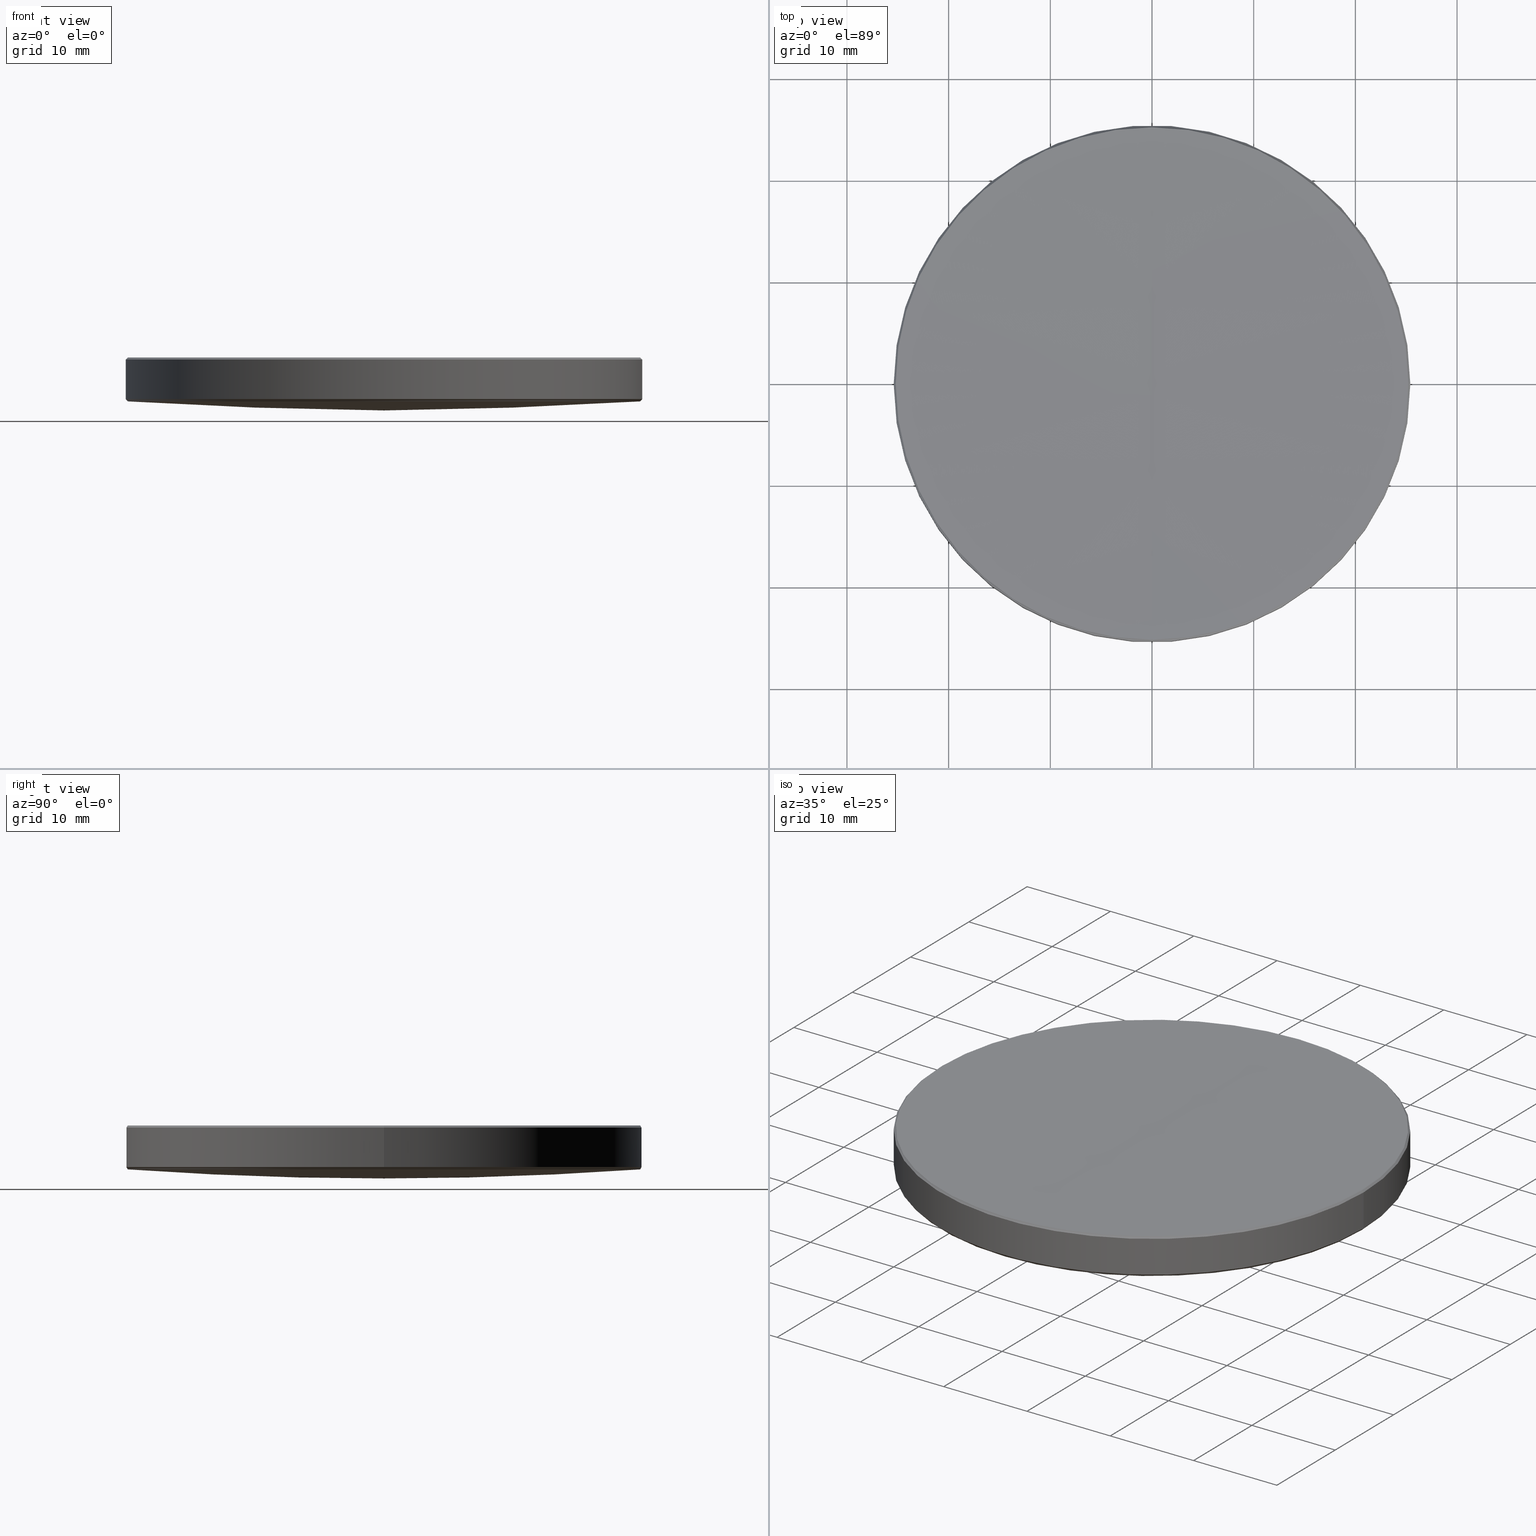
[diagram: canonical four-view strip — front | top / right | iso, engineering-drawing reading convention]
A machine part, canonical four-view strip (front | top / right | iso — engineering-drawing reading convention). The complete STEP part file that produces these views, byte-faithful:
ISO-10303-21;
HEADER;
FILE_DESCRIPTION (( 'STEP AP214' ),
    '1' );
FILE_NAME ('GLM2-050B-1000.STEP',
    '2024-08-09T03:01:46',
    ( 'Windows User' ),
    ( 'P R C' ),
    'SwSTEP 2.0',
    'SolidWorks 2022',
    '' );
FILE_SCHEMA (( 'AUTOMOTIVE_DESIGN' ));
ENDSEC;

DATA;
#1 = DIRECTION ( 'NONE',  ( -1.000000000000000000, 0.000000000000000000, 0.000000000000000000 ) ) ;
#2 = ORIENTED_EDGE ( 'NONE', *, *, #310, .T. ) ;
#3 = CARTESIAN_POINT ( 'NONE',  ( 25.20315217857431023, 3.098549417112872365E-15, 17.29684782142548727 ) ) ;
#4 = AXIS2_PLACEMENT_3D ( 'NONE', #190, #291, #84 ) ;
#5 = DIRECTION ( 'NONE',  ( 0.000000000000000000, 0.000000000000000000, 1.000000000000000000 ) ) ;
#6 = AXIS2_PLACEMENT_3D ( 'NONE', #225, #30, #304 ) ;
#7 = SURFACE_SIDE_STYLE ('',( #139 ) ) ;
#8 = VECTOR ( 'NONE', #161, 1000.000000000000000 ) ;
#9 = SURFACE_SIDE_STYLE ('',( #209 ) ) ;
#10 = ORIENTED_EDGE ( 'NONE', *, *, #301, .T. ) ;
#11 = EDGE_CURVE ( 'NONE', #104, #186, #243, .T. ) ;
#12 = EDGE_LOOP ( 'NONE', ( #96, #62, #92, #68 ) ) ;
#13 = AXIS2_PLACEMENT_3D ( 'NONE', #230, #133, #109 ) ;
#14 = ORIENTED_EDGE ( 'NONE', *, *, #48, .T. ) ;
#15 = ORIENTED_EDGE ( 'NONE', *, *, #45, .F. ) ;
#16 = AXIS2_PLACEMENT_3D ( 'NONE', #163, #5, #38 ) ;
#17 = VERTEX_POINT ( 'NONE', #137 ) ;
#18 = ADVANCED_FACE ( 'NONE', ( #179 ), #248, .T. ) ;
#19 = CIRCLE ( 'NONE', #194, 356.6899999999999977 ) ;
#20 = AXIS2_PLACEMENT_3D ( 'NONE', #208, #308, #182 ) ;
#21 = DIRECTION ( 'NONE',  ( 0.6549583843073308875, 0.000000000000000000, 0.7556649487871797133 ) ) ;
#22 = DIRECTION ( 'NONE',  ( 0.000000000000000000, 0.000000000000000000, -1.000000000000000000 ) ) ;
#23 = AXIS2_PLACEMENT_3D ( 'NONE', #257, #78, #50 ) ;
#24 = EDGE_CURVE ( 'NONE', #17, #186, #111, .T. ) ;
#25 = DIRECTION ( 'NONE',  ( 0.000000000000000000, 1.000000000000000000, 0.000000000000000000 ) ) ;
#26 = DIRECTION ( 'NONE',  ( 0.000000000000000000, 0.000000000000000000, -1.000000000000000000 ) ) ;
#27 = VECTOR ( 'NONE', #160, 1000.000000000000227 ) ;
#28 = LINE ( 'NONE', #51, #27 ) ;
#29 = VERTEX_POINT ( 'NONE', #203 ) ;
#30 = DIRECTION ( 'NONE',  ( -0.000000000000000000, -0.000000000000000000, 1.000000000000000000 ) ) ;
#31 = PRODUCT_CONTEXT ( 'NONE', #322, 'mechanical' ) ;
#32 = CARTESIAN_POINT ( 'NONE',  ( 0.000000000000000000, 0.000000000000000000, 13.21592418636929978 ) ) ;
#33 = AXIS2_PLACEMENT_3D ( 'NONE', #32, #63, #165 ) ;
#34 = FACE_OUTER_BOUND ( 'NONE', #118, .T. ) ;
#35 = ORIENTED_EDGE ( 'NONE', *, *, #234, .F. ) ;
#36 = DIRECTION ( 'NONE',  ( -0.000000000000000000, -0.000000000000000000, 1.000000000000000000 ) ) ;
#37 = CIRCLE ( 'NONE', #266, 25.39999999999999858 ) ;
#38 = DIRECTION ( 'NONE',  ( 1.000000000000000000, 0.000000000000000000, 0.000000000000000000 ) ) ;
#39 = VERTEX_POINT ( 'NONE', #227 ) ;
#40 = CARTESIAN_POINT ( 'NONE',  ( 0.000000000000000000, 2.184096333939347168E-14, 12.09447984699951739 ) ) ;
#41 = ORIENTED_EDGE ( 'NONE', *, *, #320, .T. ) ;
#42 =( NAMED_UNIT ( * ) PLANE_ANGLE_UNIT ( ) SI_UNIT ( $, .RADIAN. ) );
#43 = ORIENTED_EDGE ( 'NONE', *, *, #259, .T. ) ;
#44 = DIRECTION ( 'NONE',  ( -1.000000000000000000, 0.000000000000000000, 0.000000000000000000 ) ) ;
#45 = EDGE_CURVE ( 'NONE', #67, #218, #28, .T. ) ;
#46 = AXIS2_PLACEMENT_3D ( 'NONE', #57, #158, #153 ) ;
#47 = PRESENTATION_LAYER_ASSIGNMENT (  '', '', ( #178 ) ) ;
#48 = EDGE_CURVE ( 'NONE', #281, #39, #250, .T. ) ;
#49 = CARTESIAN_POINT ( 'NONE',  ( -25.39999999999999858, 3.110602869834276865E-15, 13.21592418636929978 ) ) ;
#50 = DIRECTION ( 'NONE',  ( 1.000000000000000000, 0.000000000000000000, 0.000000000000000000 ) ) ;
#51 = CARTESIAN_POINT ( 'NONE',  ( 25.20315217857427470, 3.086495964391462737E-15, 17.29684782142548727 ) ) ;
#52 = SPHERICAL_SURFACE ( 'NONE', #207, 356.6899999999999977 ) ;
#53 = CARTESIAN_POINT ( 'NONE',  ( -25.39999999999999858, 0.000000000000000000, 20.00000000000000000 ) ) ;
#54 = EDGE_LOOP ( 'NONE', ( #120, #41, #206, #136 ) ) ;
#55 = PRESENTATION_LAYER_ASSIGNMENT (  '', '', ( #110 ) ) ;
#56 = SPHERICAL_SURFACE ( 'NONE', #91, 1580.240000000000236 ) ;
#57 = CARTESIAN_POINT ( 'NONE',  ( 0.000000000000000000, 0.000000000000000000, 17.29684782142548727 ) ) ;
#58 = EDGE_LOOP ( 'NONE', ( #289, #254, #171, #164, #102 ) ) ;
#59 = CARTESIAN_POINT ( 'NONE',  ( 25.39999999999999858, 3.110602869834276865E-15, 13.21592418636929978 ) ) ;
#60 = DIRECTION ( 'NONE',  ( 1.000000000000000000, 0.000000000000000000, 0.000000000000000000 ) ) ;
#61 = DIRECTION ( 'NONE',  ( -0.000000000000000000, -0.000000000000000000, 1.000000000000000000 ) ) ;
#62 = ORIENTED_EDGE ( 'NONE', *, *, #24, .T. ) ;
#63 = DIRECTION ( 'NONE',  ( -0.000000000000000000, -0.000000000000000000, 1.000000000000000000 ) ) ;
#64 = VERTEX_POINT ( 'NONE', #274 ) ;
#65 = DIRECTION ( 'NONE',  ( -1.000000000000000000, 0.000000000000000000, 0.000000000000000000 ) ) ;
#66 = CONICAL_SURFACE ( 'NONE', #33, 25.39999999999999858, 0.7141275475421955399 ) ;
#67 = VERTEX_POINT ( 'NONE', #3 ) ;
#68 = ORIENTED_EDGE ( 'NONE', *, *, #252, .T. ) ;
#69 = PRODUCT_DEFINITION_CONTEXT ( 'detailed design', #156, 'design' ) ;
#70 = ORIENTED_EDGE ( 'NONE', *, *, #125, .F. ) ;
#71 = LINE ( 'NONE', #228, #284 ) ;
#72 = CARTESIAN_POINT ( 'NONE',  ( 0.000000000000000000, 0.000000000000000000, 20.00000000000000000 ) ) ;
#73 = CARTESIAN_POINT ( 'NONE',  ( 0.000000000000000000, 0.000000000000000000, 368.7844798469995453 ) ) ;
#74 = CYLINDRICAL_SURFACE ( 'NONE', #231, 25.39999999999999858 ) ;
#75 = DIRECTION ( 'NONE',  ( -1.000000000000000000, 0.000000000000000000, 0.000000000000000000 ) ) ;
#76 = EDGE_CURVE ( 'NONE', #278, #39, #233, .T. ) ;
#77 = PRODUCT_DEFINITION_FORMATION_WITH_SPECIFIED_SOURCE ( '�κ�', '', #180, .NOT_KNOWN. ) ;
#78 = DIRECTION ( 'NONE',  ( 0.000000000000000000, 0.000000000000000000, -1.000000000000000000 ) ) ;
#79 = CARTESIAN_POINT ( 'NONE',  ( -3.086495964391225684E-15, -25.20315217857234202, 17.29684782142537713 ) ) ;
#80 = CIRCLE ( 'NONE', #267, 1580.240000000000236 ) ;
#81 = DIRECTION ( 'NONE',  ( -0.000000000000000000, -0.000000000000000000, -1.000000000000000000 ) ) ;
#82 = FILL_AREA_STYLE ('',( #280 ) ) ;
#83 = EDGE_CURVE ( 'NONE', #186, #67, #288, .T. ) ;
#84 = DIRECTION ( 'NONE',  ( 1.000000000000000000, 0.000000000000000000, 0.000000000000000000 ) ) ;
#85 = FILL_AREA_STYLE_COLOUR ( '', #317 ) ;
#86 = CARTESIAN_POINT ( 'NONE',  ( 0.000000000000000000, 0.000000000000000000, 13.21592418636929978 ) ) ;
#87 = EDGE_LOOP ( 'NONE', ( #305, #43, #215, #193 ) ) ;
#88 = CARTESIAN_POINT ( 'NONE',  ( 25.39999999999999858, 3.110602869834276865E-15, 17.09999999999989484 ) ) ;
#89 = SURFACE_STYLE_USAGE ( .BOTH. , #9 ) ;
#90 = FACE_OUTER_BOUND ( 'NONE', #142, .T. ) ;
#91 = AXIS2_PLACEMENT_3D ( 'NONE', #157, #130, #25 ) ;
#92 = ORIENTED_EDGE ( 'NONE', *, *, #83, .T. ) ;
#93 = AXIS2_PLACEMENT_3D ( 'NONE', #269, #44, #325 ) ;
#94 = EDGE_CURVE ( 'NONE', #235, #114, #270, .T. ) ;
#95 = DIRECTION ( 'NONE',  ( -1.000000000000000000, 0.000000000000000000, 0.000000000000000000 ) ) ;
#96 = ORIENTED_EDGE ( 'NONE', *, *, #159, .F. ) ;
#97 = MECHANICAL_DESIGN_GEOMETRIC_PRESENTATION_REPRESENTATION (  '', ( #110 ), #108 ) ;
#98 = EDGE_CURVE ( 'NONE', #39, #318, #315, .T. ) ;
#99 = AXIS2_PLACEMENT_3D ( 'NONE', #214, #61, #240 ) ;
#100 = CARTESIAN_POINT ( 'NONE',  ( 0.000000000000000000, 0.000000000000000000, 368.7844798469995453 ) ) ;
#101 = CARTESIAN_POINT ( 'NONE',  ( 0.000000000000000000, 0.000000000000000000, 17.29684782142548727 ) ) ;
#102 = ORIENTED_EDGE ( 'NONE', *, *, #301, .F. ) ;
#103 = DIRECTION ( 'NONE',  ( -1.000000000000000000, 1.224646799147353207E-16, 0.000000000000000000 ) ) ;
#104 = VERTEX_POINT ( 'NONE', #131 ) ;
#105 =( LENGTH_UNIT ( ) NAMED_UNIT ( * ) SI_UNIT ( .MILLI., .METRE. ) );
#106 = DIRECTION ( 'NONE',  ( 0.000000000000000000, 1.000000000000000000, 0.000000000000000000 ) ) ;
#107 = CARTESIAN_POINT ( 'NONE',  ( 25.39999999999999858, 0.000000000000000000, 13.21592418636929978 ) ) ;
#108 =( GEOMETRIC_REPRESENTATION_CONTEXT ( 3 ) GLOBAL_UNCERTAINTY_ASSIGNED_CONTEXT ( ( #296 ) ) GLOBAL_UNIT_ASSIGNED_CONTEXT ( ( #191, #42, #262 ) ) REPRESENTATION_CONTEXT ( 'NONE', 'WORKASPACE' ) );
#109 = DIRECTION ( 'NONE',  ( 1.000000000000000000, 0.000000000000000000, 0.000000000000000000 ) ) ;
#110 = STYLED_ITEM ( 'NONE', ( #113 ), #192 ) ;
#111 = CIRCLE ( 'NONE', #217, 1580.240000000000236 ) ;
#112 = SURFACE_STYLE_USAGE ( .BOTH. , #7 ) ;
#113 = PRESENTATION_STYLE_ASSIGNMENT (( #112 ) ) ;
#114 = VERTEX_POINT ( 'NONE', #331 ) ;
#115 = EDGE_CURVE ( 'NONE', #29, #278, #321, .T. ) ;
#116 = DIRECTION ( 'NONE',  ( 1.000000000000000000, 0.000000000000000000, 0.000000000000000000 ) ) ;
#117 =( NAMED_UNIT ( * ) PLANE_ANGLE_UNIT ( ) SI_UNIT ( $, .RADIAN. ) );
#118 = EDGE_LOOP ( 'NONE', ( #15, #140, #298, #219, #35 ) ) ;
#119 = LINE ( 'NONE', #196, #8 ) ;
#120 = ORIENTED_EDGE ( 'NONE', *, *, #94, .F. ) ;
#121 = UNCERTAINTY_MEASURE_WITH_UNIT (LENGTH_MEASURE( 1.000000000000000082E-05 ), #211, 'distance_accuracy_value', 'NONE');
#122 = ORIENTED_EDGE ( 'NONE', *, *, #94, .T. ) ;
#123 = AXIS2_PLACEMENT_3D ( 'NONE', #253, #22, #75 ) ;
#124 = AXIS2_PLACEMENT_3D ( 'NONE', #72, #150, #282 ) ;
#125 = EDGE_CURVE ( 'NONE', #239, #104, #221, .T. ) ;
#126 = CIRCLE ( 'NONE', #13, 25.20055964190958520 ) ;
#127 = AXIS2_PLACEMENT_3D ( 'NONE', #101, #155, #204 ) ;
#128 = DIRECTION ( 'NONE',  ( -1.000000000000000000, 0.000000000000000000, 0.000000000000000000 ) ) ;
#129 = CIRCLE ( 'NONE', #99, 25.20315217857431023 ) ;
#130 = DIRECTION ( 'NONE',  ( -1.000000000000000000, 0.000000000000000000, 0.000000000000000000 ) ) ;
#131 = CARTESIAN_POINT ( 'NONE',  ( -25.20315217857431023, 0.000000000000000000, 17.29684782142548727 ) ) ;
#132 = CARTESIAN_POINT ( 'NONE',  ( 0.000000000000000000, 0.000000000000000000, 368.7844798469995453 ) ) ;
#133 = DIRECTION ( 'NONE',  ( 0.000000000000000000, 0.000000000000000000, -1.000000000000000000 ) ) ;
#134 = AXIS2_PLACEMENT_3D ( 'NONE', #73, #277, #26 ) ;
#135 = DIRECTION ( 'NONE',  ( 1.000000000000000000, 0.000000000000000000, 0.000000000000000000 ) ) ;
#136 = ORIENTED_EDGE ( 'NONE', *, *, #154, .T. ) ;
#137 = CARTESIAN_POINT ( 'NONE',  ( 0.000000000000000000, 9.676179289423068622E-14, 17.09585326409612804 ) ) ;
#138 = APPLICATION_PROTOCOL_DEFINITION ( 'draft international standard', 'automotive_design', 1998, #156 ) ;
#139 = SURFACE_STYLE_FILL_AREA ( #82 ) ;
#140 = ORIENTED_EDGE ( 'NONE', *, *, #83, .F. ) ;
#141 = PRODUCT_DEFINITION ( 'δ֪', '', #77, #69 ) ;
#142 = EDGE_LOOP ( 'NONE', ( #148, #149, #213, #2, #195 ) ) ;
#143 = PRODUCT_DEFINITION_SHAPE ( 'NONE', 'NONE',  #141 ) ;
#144 = DIRECTION ( 'NONE',  ( -0.000000000000000000, -0.000000000000000000, 1.000000000000000000 ) ) ;
#145 = ORIENTED_EDGE ( 'NONE', *, *, #244, .T. ) ;
#146 = FACE_OUTER_BOUND ( 'NONE', #58, .T. ) ;
#147 = AXIS2_PLACEMENT_3D ( 'NONE', #300, #174, #95 ) ;
#148 = ORIENTED_EDGE ( 'NONE', *, *, #76, .F. ) ;
#149 = ORIENTED_EDGE ( 'NONE', *, *, #115, .F. ) ;
#150 = DIRECTION ( 'NONE',  ( -0.000000000000000000, -0.000000000000000000, -1.000000000000000000 ) ) ;
#151 = CARTESIAN_POINT ( 'NONE',  ( 0.000000000000000000, 0.000000000000000000, 12.98581782909002946 ) ) ;
#152 = AXIS2_PLACEMENT_3D ( 'NONE', #86, #144, #167 ) ;
#153 = DIRECTION ( 'NONE',  ( 1.000000000000000000, 0.000000000000000000, 0.000000000000000000 ) ) ;
#154 = EDGE_CURVE ( 'NONE', #278, #114, #126, .T. ) ;
#155 = DIRECTION ( 'NONE',  ( -0.000000000000000000, -0.000000000000000000, 1.000000000000000000 ) ) ;
#156 = APPLICATION_CONTEXT ( 'automotive_design' ) ;
#157 = CARTESIAN_POINT ( 'NONE',  ( 0.000000000000000000, 0.000000000000000000, 1597.335853264096386 ) ) ;
#158 = DIRECTION ( 'NONE',  ( -0.000000000000000000, -0.000000000000000000, 1.000000000000000000 ) ) ;
#159 = EDGE_CURVE ( 'NONE', #17, #239, #80, .T. ) ;
#160 = DIRECTION ( 'NONE',  ( 0.7071067811867780550, 8.659560562357755501E-17, -0.7071067811863169794 ) ) ;
#161 = DIRECTION ( 'NONE',  ( -0.000000000000000000, -0.000000000000000000, -1.000000000000000000 ) ) ;
#162 = VECTOR ( 'NONE', #183, 1000.000000000000000 ) ;
#163 = CARTESIAN_POINT ( 'NONE',  ( 0.000000000000000000, 0.000000000000000000, 0.000000000000000000 ) ) ;
#164 = ORIENTED_EDGE ( 'NONE', *, *, #310, .F. ) ;
#165 = DIRECTION ( 'NONE',  ( 1.000000000000000000, 0.000000000000000000, 0.000000000000000000 ) ) ;
#166 =( NAMED_UNIT ( * ) SI_UNIT ( $, .STERADIAN. ) SOLID_ANGLE_UNIT ( ) );
#167 = DIRECTION ( 'NONE',  ( 1.000000000000000000, 0.000000000000000000, 0.000000000000000000 ) ) ;
#168 = ORIENTED_EDGE ( 'NONE', *, *, #11, .T. ) ;
#169 = APPLICATION_PROTOCOL_DEFINITION ( 'draft international standard', 'automotive_design', 1998, #322 ) ;
#170 = CIRCLE ( 'NONE', #20, 25.39999999999999858 ) ;
#171 = ORIENTED_EDGE ( 'NONE', *, *, #223, .F. ) ;
#172 = ORIENTED_EDGE ( 'NONE', *, *, #234, .T. ) ;
#173 = CIRCLE ( 'NONE', #23, 25.20055964190958520 ) ;
#174 = DIRECTION ( 'NONE',  ( 0.000000000000000000, 0.000000000000000000, -1.000000000000000000 ) ) ;
#175 = EDGE_CURVE ( 'NONE', #281, #218, #170, .T. ) ;
#176 = CARTESIAN_POINT ( 'NONE',  ( -25.20055964190958520, 3.098390670026466009E-15, 12.98581782909002946 ) ) ;
#177 = SPHERICAL_SURFACE ( 'NONE', #93, 356.6899999999999977 ) ;
#178 = STYLED_ITEM ( 'NONE', ( #311 ), #316 ) ;
#179 = FACE_OUTER_BOUND ( 'NONE', #302, .T. ) ;
#180 = PRODUCT ( 'GLM2-050B-1000', 'GLM2-050B-1000', '', ( #31 ) ) ;
#181 = ADVANCED_FACE ( 'NONE', ( #202 ), #185, .F. ) ;
#182 = DIRECTION ( 'NONE',  ( 1.000000000000000000, 0.000000000000000000, 0.000000000000000000 ) ) ;
#183 = DIRECTION ( 'NONE',  ( -0.000000000000000000, -0.000000000000000000, -1.000000000000000000 ) ) ;
#184 = EDGE_LOOP ( 'NONE', ( #263, #245, #198, #168 ) ) ;
#185 = SPHERICAL_SURFACE ( 'NONE', #246, 1580.240000000000236 ) ;
#186 = VERTEX_POINT ( 'NONE', #79 ) ;
#187 = AXIS2_PLACEMENT_3D ( 'NONE', #151, #256, #135 ) ;
#188 = CYLINDRICAL_SURFACE ( 'NONE', #124, 25.39999999999999858 ) ;
#189 = CARTESIAN_POINT ( 'NONE',  ( 0.000000000000000000, 0.000000000000000000, 17.29684782142548727 ) ) ;
#190 = CARTESIAN_POINT ( 'NONE',  ( 0.000000000000000000, 0.000000000000000000, 17.09999999999989484 ) ) ;
#191 =( LENGTH_UNIT ( ) NAMED_UNIT ( * ) SI_UNIT ( .MILLI., .METRE. ) );
#192 = MANIFOLD_SOLID_BREP ( '����1', #309 ) ;
#193 = ORIENTED_EDGE ( 'NONE', *, *, #48, .F. ) ;
#194 = AXIS2_PLACEMENT_3D ( 'NONE', #100, #324, #249 ) ;
#195 = ORIENTED_EDGE ( 'NONE', *, *, #98, .F. ) ;
#196 = CARTESIAN_POINT ( 'NONE',  ( 25.39999999999999858, 3.110602869834276865E-15, 20.00000000000000000 ) ) ;
#197 = AXIS2_PLACEMENT_3D ( 'NONE', #314, #286, #116 ) ;
#198 = ORIENTED_EDGE ( 'NONE', *, *, #125, .T. ) ;
#199 = ADVANCED_FACE ( 'NONE', ( #90 ), #66, .T. ) ;
#200 = COLOUR_RGB ( '',1.000000000000000000, 1.000000000000000000, 1.000000000000000000 ) ;
#201 = CARTESIAN_POINT ( 'NONE',  ( 0.000000000000000000, 0.000000000000000000, 20.00000000000000000 ) ) ;
#202 = FACE_OUTER_BOUND ( 'NONE', #184, .T. ) ;
#203 = CARTESIAN_POINT ( 'NONE',  ( -3.086178470218615315E-15, -25.20055964190926545, 12.98581782909005788 ) ) ;
#204 = DIRECTION ( 'NONE',  ( 1.000000000000000000, 0.000000000000000000, 0.000000000000000000 ) ) ;
#205 = PRODUCT_RELATED_PRODUCT_CATEGORY ( 'part', '', ( #180 ) ) ;
#206 = ORIENTED_EDGE ( 'NONE', *, *, #115, .T. ) ;
#207 = AXIS2_PLACEMENT_3D ( 'NONE', #132, #128, #222 ) ;
#208 = CARTESIAN_POINT ( 'NONE',  ( 0.000000000000000000, 0.000000000000000000, 17.09999999999989484 ) ) ;
#209 = SURFACE_STYLE_FILL_AREA ( #312 ) ;
#210 = DIRECTION ( 'NONE',  ( -1.224646799147353207E-16, -1.000000000000000000, 0.000000000000000000 ) ) ;
#211 =( LENGTH_UNIT ( ) NAMED_UNIT ( * ) SI_UNIT ( .MILLI., .METRE. ) );
#212 = CONICAL_SURFACE ( 'NONE', #152, 25.39999999999999858, 0.7141275475421955399 ) ;
#213 = ORIENTED_EDGE ( 'NONE', *, *, #244, .F. ) ;
#214 = CARTESIAN_POINT ( 'NONE',  ( 0.000000000000000000, 0.000000000000000000, 17.29684782142548727 ) ) ;
#215 = ORIENTED_EDGE ( 'NONE', *, *, #223, .T. ) ;
#216 =( GEOMETRIC_REPRESENTATION_CONTEXT ( 3 ) GLOBAL_UNCERTAINTY_ASSIGNED_CONTEXT ( ( #121 ) ) GLOBAL_UNIT_ASSIGNED_CONTEXT ( ( #211, #285, #294 ) ) REPRESENTATION_CONTEXT ( 'NONE', 'WORKASPACE' ) );
#217 = AXIS2_PLACEMENT_3D ( 'NONE', #306, #103, #210 ) ;
#218 = VERTEX_POINT ( 'NONE', #88 ) ;
#219 = ORIENTED_EDGE ( 'NONE', *, *, #299, .T. ) ;
#220 = CIRCLE ( 'NONE', #4, 25.39999999999999858 ) ;
#221 = CIRCLE ( 'NONE', #297, 25.20315217857431023 ) ;
#222 = DIRECTION ( 'NONE',  ( 0.000000000000000000, 1.000000000000000000, 0.000000000000000000 ) ) ;
#223 = EDGE_CURVE ( 'NONE', #318, #39, #37, .T. ) ;
#224 = FACE_OUTER_BOUND ( 'NONE', #87, .T. ) ;
#225 = CARTESIAN_POINT ( 'NONE',  ( 0.000000000000000000, 0.000000000000000000, 13.21592418636929978 ) ) ;
#226 = EDGE_LOOP ( 'NONE', ( #307, #122, #10, #145 ) ) ;
#227 = CARTESIAN_POINT ( 'NONE',  ( -25.39999999999999858, 0.000000000000000000, 13.21592418636929978 ) ) ;
#228 = CARTESIAN_POINT ( 'NONE',  ( -25.20315217857427470, 0.000000000000000000, 17.29684782142548727 ) ) ;
#229 = CARTESIAN_POINT ( 'NONE',  ( 0.000000000000000000, 0.000000000000000000, 1597.335853264096386 ) ) ;
#230 = CARTESIAN_POINT ( 'NONE',  ( 0.000000000000000000, 0.000000000000000000, 12.98581782909002946 ) ) ;
#231 = AXIS2_PLACEMENT_3D ( 'NONE', #201, #81, #255 ) ;
#232 = SHAPE_DEFINITION_REPRESENTATION ( #143, #316 ) ;
#233 = LINE ( 'NONE', #49, #260 ) ;
#234 = EDGE_CURVE ( 'NONE', #218, #281, #220, .T. ) ;
#235 = VERTEX_POINT ( 'NONE', #40 ) ;
#236 = CONICAL_SURFACE ( 'NONE', #147, 25.20315217857427470, 0.7853981633977743515 ) ;
#237 = CARTESIAN_POINT ( 'NONE',  ( 0.000000000000000000, 25.20315217857234202, 17.29684782142537713 ) ) ;
#238 = ORIENTED_EDGE ( 'NONE', *, *, #175, .F. ) ;
#239 = VERTEX_POINT ( 'NONE', #237 ) ;
#240 = DIRECTION ( 'NONE',  ( 1.000000000000000000, 0.000000000000000000, 0.000000000000000000 ) ) ;
#241 = ORIENTED_EDGE ( 'NONE', *, *, #45, .T. ) ;
#242 = EDGE_LOOP ( 'NONE', ( #295, #172, #14, #261 ) ) ;
#243 = CIRCLE ( 'NONE', #127, 25.20315217857431023 ) ;
#244 = EDGE_CURVE ( 'NONE', #64, #29, #272, .T. ) ;
#245 = ORIENTED_EDGE ( 'NONE', *, *, #159, .T. ) ;
#246 = AXIS2_PLACEMENT_3D ( 'NONE', #276, #1, #106 ) ;
#247 = ADVANCED_FACE ( 'NONE', ( #146 ), #212, .T. ) ;
#248 = CONICAL_SURFACE ( 'NONE', #123, 25.20315217857427470, 0.7853981633977743515 ) ;
#249 = DIRECTION ( 'NONE',  ( -1.224646799147353207E-16, -1.000000000000000000, 0.000000000000000000 ) ) ;
#250 = LINE ( 'NONE', #53, #162 ) ;
#251 = DIRECTION ( 'NONE',  ( -0.6549583843073308875, 8.020926889166948068E-17, 0.7556649487871797133 ) ) ;
#252 = EDGE_CURVE ( 'NONE', #67, #239, #129, .T. ) ;
#253 = CARTESIAN_POINT ( 'NONE',  ( 0.000000000000000000, 0.000000000000000000, 17.29684782142548727 ) ) ;
#254 = ORIENTED_EDGE ( 'NONE', *, *, #76, .T. ) ;
#255 = DIRECTION ( 'NONE',  ( -1.000000000000000000, 0.000000000000000000, 0.000000000000000000 ) ) ;
#256 = DIRECTION ( 'NONE',  ( 0.000000000000000000, 0.000000000000000000, -1.000000000000000000 ) ) ;
#257 = CARTESIAN_POINT ( 'NONE',  ( 0.000000000000000000, 0.000000000000000000, 12.98581782909002946 ) ) ;
#258 = DIRECTION ( 'NONE',  ( 0.000000000000000000, 0.000000000000000000, -1.000000000000000000 ) ) ;
#259 = EDGE_CURVE ( 'NONE', #218, #318, #119, .T. ) ;
#260 = VECTOR ( 'NONE', #251, 999.9999999999998863 ) ;
#261 = ORIENTED_EDGE ( 'NONE', *, *, #98, .T. ) ;
#262 =( NAMED_UNIT ( * ) SI_UNIT ( $, .STERADIAN. ) SOLID_ANGLE_UNIT ( ) );
#263 = ORIENTED_EDGE ( 'NONE', *, *, #24, .F. ) ;
#264 = VECTOR ( 'NONE', #21, 999.9999999999998863 ) ;
#265 = ADVANCED_FACE ( 'NONE', ( #34 ), #236, .T. ) ;
#266 = AXIS2_PLACEMENT_3D ( 'NONE', #287, #36, #65 ) ;
#267 = AXIS2_PLACEMENT_3D ( 'NONE', #229, #326, #258 ) ;
#268 = ORIENTED_EDGE ( 'NONE', *, *, #299, .F. ) ;
#269 = CARTESIAN_POINT ( 'NONE',  ( 0.000000000000000000, 0.000000000000000000, 368.7844798469995453 ) ) ;
#270 = CIRCLE ( 'NONE', #134, 356.6899999999999977 ) ;
#271 = FACE_OUTER_BOUND ( 'NONE', #226, .T. ) ;
#272 = CIRCLE ( 'NONE', #197, 25.20055964190958520 ) ;
#273 = FACE_OUTER_BOUND ( 'NONE', #242, .T. ) ;
#274 = CARTESIAN_POINT ( 'NONE',  ( 25.20055964190958520, 0.000000000000000000, 12.98581782909002946 ) ) ;
#275 = FACE_OUTER_BOUND ( 'NONE', #12, .T. ) ;
#276 = CARTESIAN_POINT ( 'NONE',  ( 0.000000000000000000, 0.000000000000000000, 1597.335853264096386 ) ) ;
#277 = DIRECTION ( 'NONE',  ( 1.000000000000000000, -0.000000000000000000, 0.000000000000000000 ) ) ;
#278 = VERTEX_POINT ( 'NONE', #176 ) ;
#279 = LINE ( 'NONE', #107, #264 ) ;
#280 = FILL_AREA_STYLE_COLOUR ( '', #200 ) ;
#281 = VERTEX_POINT ( 'NONE', #323 ) ;
#282 = DIRECTION ( 'NONE',  ( -1.000000000000000000, 0.000000000000000000, 0.000000000000000000 ) ) ;
#283 = DIRECTION ( 'NONE',  ( -0.000000000000000000, -0.000000000000000000, 1.000000000000000000 ) ) ;
#284 = VECTOR ( 'NONE', #332, 1000.000000000000227 ) ;
#285 =( NAMED_UNIT ( * ) PLANE_ANGLE_UNIT ( ) SI_UNIT ( $, .RADIAN. ) );
#286 = DIRECTION ( 'NONE',  ( 0.000000000000000000, 0.000000000000000000, -1.000000000000000000 ) ) ;
#287 = CARTESIAN_POINT ( 'NONE',  ( 0.000000000000000000, 0.000000000000000000, 13.21592418636929978 ) ) ;
#288 = CIRCLE ( 'NONE', #46, 25.20315217857431023 ) ;
#289 = ORIENTED_EDGE ( 'NONE', *, *, #154, .F. ) ;
#290 = ADVANCED_FACE ( 'NONE', ( #271 ), #177, .T. ) ;
#291 = DIRECTION ( 'NONE',  ( 0.000000000000000000, 0.000000000000000000, -1.000000000000000000 ) ) ;
#292 =( GEOMETRIC_REPRESENTATION_CONTEXT ( 3 ) GLOBAL_UNCERTAINTY_ASSIGNED_CONTEXT ( ( #328 ) ) GLOBAL_UNIT_ASSIGNED_CONTEXT ( ( #105, #117, #166 ) ) REPRESENTATION_CONTEXT ( 'NONE', 'WORKASPACE' ) );
#293 = MECHANICAL_DESIGN_GEOMETRIC_PRESENTATION_REPRESENTATION (  '', ( #178 ), #216 ) ;
#294 =( NAMED_UNIT ( * ) SI_UNIT ( $, .STERADIAN. ) SOLID_ANGLE_UNIT ( ) );
#295 = ORIENTED_EDGE ( 'NONE', *, *, #259, .F. ) ;
#296 = UNCERTAINTY_MEASURE_WITH_UNIT (LENGTH_MEASURE( 1.000000000000000082E-05 ), #191, 'distance_accuracy_value', 'NONE');
#297 = AXIS2_PLACEMENT_3D ( 'NONE', #189, #283, #60 ) ;
#298 = ORIENTED_EDGE ( 'NONE', *, *, #11, .F. ) ;
#299 = EDGE_CURVE ( 'NONE', #104, #281, #71, .T. ) ;
#300 = CARTESIAN_POINT ( 'NONE',  ( 0.000000000000000000, 0.000000000000000000, 17.29684782142548727 ) ) ;
#301 = EDGE_CURVE ( 'NONE', #114, #64, #173, .T. ) ;
#302 = EDGE_LOOP ( 'NONE', ( #327, #241, #238, #268, #70 ) ) ;
#303 = ADVANCED_FACE ( 'NONE', ( #224 ), #74, .T. ) ;
#304 = DIRECTION ( 'NONE',  ( -1.000000000000000000, 0.000000000000000000, 0.000000000000000000 ) ) ;
#305 = ORIENTED_EDGE ( 'NONE', *, *, #175, .T. ) ;
#306 = CARTESIAN_POINT ( 'NONE',  ( 0.000000000000000000, 0.000000000000000000, 1597.335853264096386 ) ) ;
#307 = ORIENTED_EDGE ( 'NONE', *, *, #320, .F. ) ;
#308 = DIRECTION ( 'NONE',  ( 0.000000000000000000, 0.000000000000000000, -1.000000000000000000 ) ) ;
#309 = CLOSED_SHELL ( 'NONE', ( #18, #247, #329, #319, #303, #313, #290, #181, #199, #265 ) ) ;
#310 = EDGE_CURVE ( 'NONE', #64, #318, #279, .T. ) ;
#311 = PRESENTATION_STYLE_ASSIGNMENT (( #89 ) ) ;
#312 = FILL_AREA_STYLE ('',( #85 ) ) ;
#313 = ADVANCED_FACE ( 'NONE', ( #273 ), #188, .T. ) ;
#314 = CARTESIAN_POINT ( 'NONE',  ( 0.000000000000000000, 0.000000000000000000, 12.98581782909002946 ) ) ;
#315 = CIRCLE ( 'NONE', #6, 25.39999999999999858 ) ;
#316 = ADVANCED_BREP_SHAPE_REPRESENTATION ( 'GLM2-050B-1000', ( #192, #16 ), #292 ) ;
#317 = COLOUR_RGB ( '',1.000000000000000000, 1.000000000000000000, 1.000000000000000000 ) ;
#318 = VERTEX_POINT ( 'NONE', #59 ) ;
#319 = ADVANCED_FACE ( 'NONE', ( #330 ), #52, .T. ) ;
#320 = EDGE_CURVE ( 'NONE', #235, #29, #19, .T. ) ;
#321 = CIRCLE ( 'NONE', #187, 25.20055964190958520 ) ;
#322 = APPLICATION_CONTEXT ( 'automotive_design' ) ;
#323 = CARTESIAN_POINT ( 'NONE',  ( -25.39999999999999858, 0.000000000000000000, 17.09999999999989484 ) ) ;
#324 = DIRECTION ( 'NONE',  ( -1.000000000000000000, 1.224646799147353207E-16, 0.000000000000000000 ) ) ;
#325 = DIRECTION ( 'NONE',  ( 0.000000000000000000, 1.000000000000000000, 0.000000000000000000 ) ) ;
#326 = DIRECTION ( 'NONE',  ( 1.000000000000000000, 0.000000000000000000, 0.000000000000000000 ) ) ;
#327 = ORIENTED_EDGE ( 'NONE', *, *, #252, .F. ) ;
#328 = UNCERTAINTY_MEASURE_WITH_UNIT (LENGTH_MEASURE( 1.000000000000000082E-05 ), #105, 'distance_accuracy_value', 'NONE');
#329 = ADVANCED_FACE ( 'NONE', ( #275 ), #56, .F. ) ;
#330 = FACE_OUTER_BOUND ( 'NONE', #54, .T. ) ;
#331 = CARTESIAN_POINT ( 'NONE',  ( 0.000000000000000000, 25.20055964190926545, 12.98581782909005788 ) ) ;
#332 = DIRECTION ( 'NONE',  ( -0.7071067811867780550, 0.000000000000000000, -0.7071067811863169794 ) ) ;
ENDSEC;
END-ISO-10303-21;
